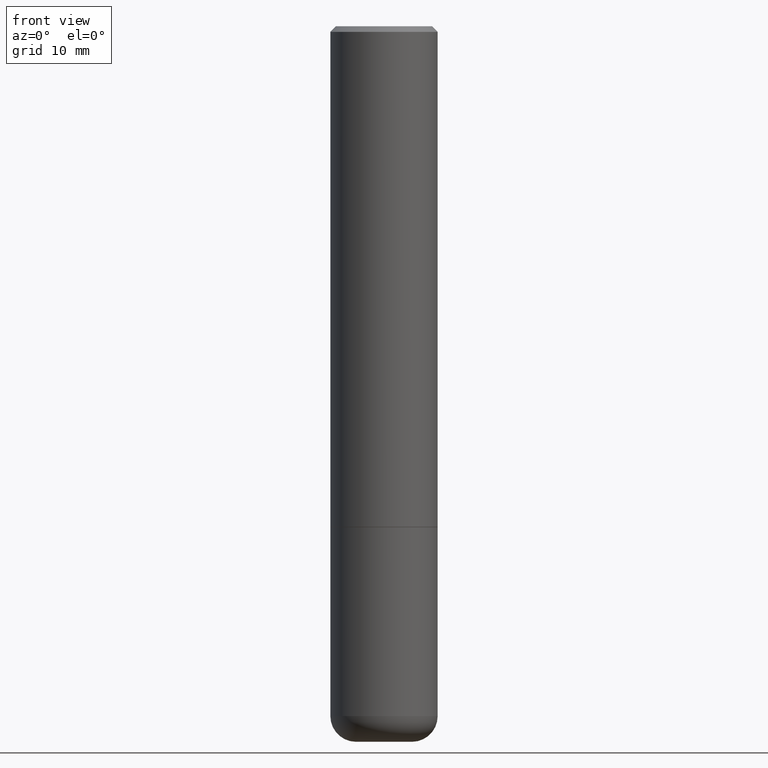
[diagram: clean part render]
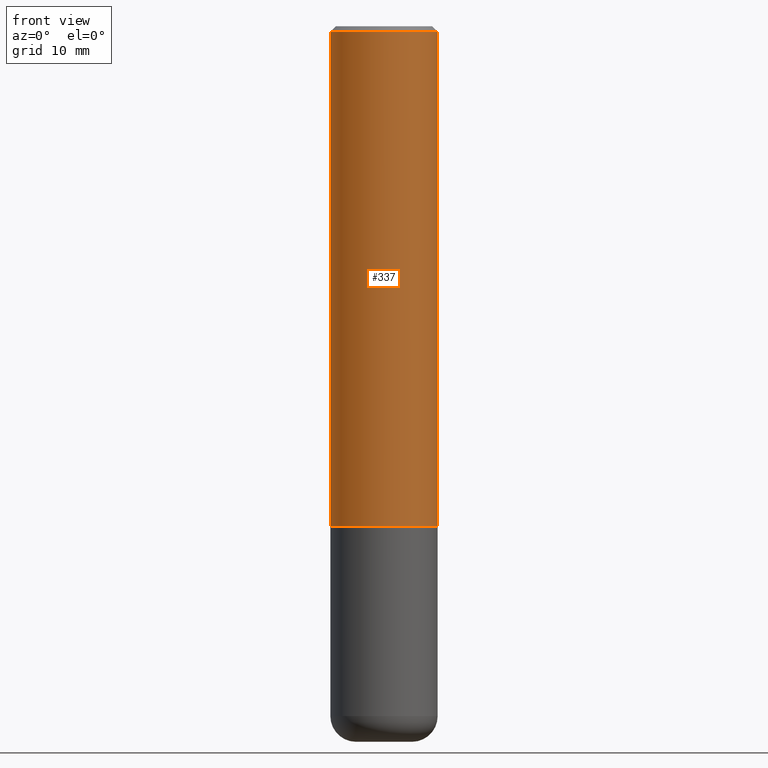
[diagram: same view with one face highlighted and labeled with its STEP entity id]
A machine part, front view. The second image highlights one B-rep face of the part: STEP entity #337.
In plain terms, the highlighted cylindrical surface (partial cylindrical patch) has radius 4.7625 mm, axis along (-0, 0, 1).
Its self-contained STEP definition (entity closure, byte-faithful):
#4 = DIRECTION ( 'NONE',  ( 1.000000000000000000, -6.982962677686265922E-15, 0.000000000000000000 ) ) ;
#14 = ORIENTED_EDGE ( 'NONE', *, *, #410, .F. ) ;
#35 = CIRCLE ( 'NONE', #88, 0.1875000000000001943 ) ;
#36 = ORIENTED_EDGE ( 'NONE', *, *, #130, .T. ) ;
#40 = CARTESIAN_POINT ( 'NONE',  ( 0.1875000000000000555, -1.356173001359025663E-15, -0.02000000000000004205 ) ) ;
#43 = CARTESIAN_POINT ( 'NONE',  ( -0.1875000000000000555, 1.239475875289312104E-15, -0.02000000000000004205 ) ) ;
#46 = VERTEX_POINT ( 'NONE', #43 ) ;
#63 = FACE_OUTER_BOUND ( 'NONE', #134, .T. ) ;
#74 = LINE ( 'NONE', #79, #266 ) ;
#79 = CARTESIAN_POINT ( 'NONE',  ( -0.1875000000000001110, 1.332267629550188637E-15, -9.223003294227953596E-30 ) ) ;
#88 = AXIS2_PLACEMENT_3D ( 'NONE', #414, #189, #119 ) ;
#90 = CARTESIAN_POINT ( 'NONE',  ( 0.1875000000000001943, -7.415906363702837461E-15, -1.749000000000000110 ) ) ;
#97 = ORIENTED_EDGE ( 'NONE', *, *, #280, .F. ) ;
#119 = DIRECTION ( 'NONE',  ( 1.000000000000000000, -6.982962677686265922E-15, 0.000000000000000000 ) ) ;
#124 = CIRCLE ( 'NONE', #353, 0.1875000000000000555 ) ;
#130 = EDGE_CURVE ( 'NONE', #377, #211, #35, .T. ) ;
#134 = EDGE_LOOP ( 'NONE', ( #14, #36, #143, #97 ) ) ;
#135 = CARTESIAN_POINT ( 'NONE',  ( 0.1875000000000001110, -1.309305502066175797E-15, 9.142831454617385217E-30 ) ) ;
#143 = ORIENTED_EDGE ( 'NONE', *, *, #323, .T. ) ;
#165 = VECTOR ( 'NONE', #204, 39.37007874015748143 ) ;
#170 = CARTESIAN_POINT ( 'NONE',  ( 0.000000000000000000, 0.000000000000000000, 0.000000000000000000 ) ) ;
#189 = DIRECTION ( 'NONE',  ( -2.445468806185136597E-29, 3.491481338843145583E-15, 1.000000000000000000 ) ) ;
#204 = DIRECTION ( 'NONE',  ( -2.445468806185136877E-29, 3.491481338843145188E-15, 1.000000000000000000 ) ) ;
#210 = DIRECTION ( 'NONE',  ( -2.445468806185136597E-29, 3.491481338843145583E-15, 1.000000000000000000 ) ) ;
#211 = VERTEX_POINT ( 'NONE', #90 ) ;
#233 = DIRECTION ( 'NONE',  ( 1.000000000000000000, -6.982962677686266711E-15, 4.876176775795935793E-29 ) ) ;
#254 = VERTEX_POINT ( 'NONE', #40 ) ;
#262 = CARTESIAN_POINT ( 'NONE',  ( -0.1875000000000001943, -1.755947614656571871E-15, -1.749000000000000110 ) ) ;
#263 = DIRECTION ( 'NONE',  ( -2.445468806185136597E-29, 3.491481338843145583E-15, 1.000000000000000000 ) ) ;
#266 = VECTOR ( 'NONE', #311, 39.37007874015748143 ) ;
#280 = EDGE_CURVE ( 'NONE', #46, #254, #124, .T. ) ;
#303 = CARTESIAN_POINT ( 'NONE',  ( 4.890937612370283668E-31, -6.982962677686305168E-17, -0.02000000000000004205 ) ) ;
#311 = DIRECTION ( 'NONE',  ( -2.445468806185136877E-29, 3.491481338843145188E-15, 1.000000000000000000 ) ) ;
#323 = EDGE_CURVE ( 'NONE', #211, #254, #335, .T. ) ;
#333 = CYLINDRICAL_SURFACE ( 'NONE', #394, 0.1875000000000001110 ) ;
#335 = LINE ( 'NONE', #135, #165 ) ;
#337 = ADVANCED_FACE ( 'NONE', ( #63 ), #333, .T. ) ;
#353 = AXIS2_PLACEMENT_3D ( 'NONE', #303, #210, #4 ) ;
#377 = VERTEX_POINT ( 'NONE', #262 ) ;
#394 = AXIS2_PLACEMENT_3D ( 'NONE', #170, #263, #233 ) ;
#410 = EDGE_CURVE ( 'NONE', #377, #46, #74, .T. ) ;
#414 = CARTESIAN_POINT ( 'NONE',  ( 4.277124942017804562E-29, -6.106600861636661664E-15, -1.749000000000000110 ) ) ;